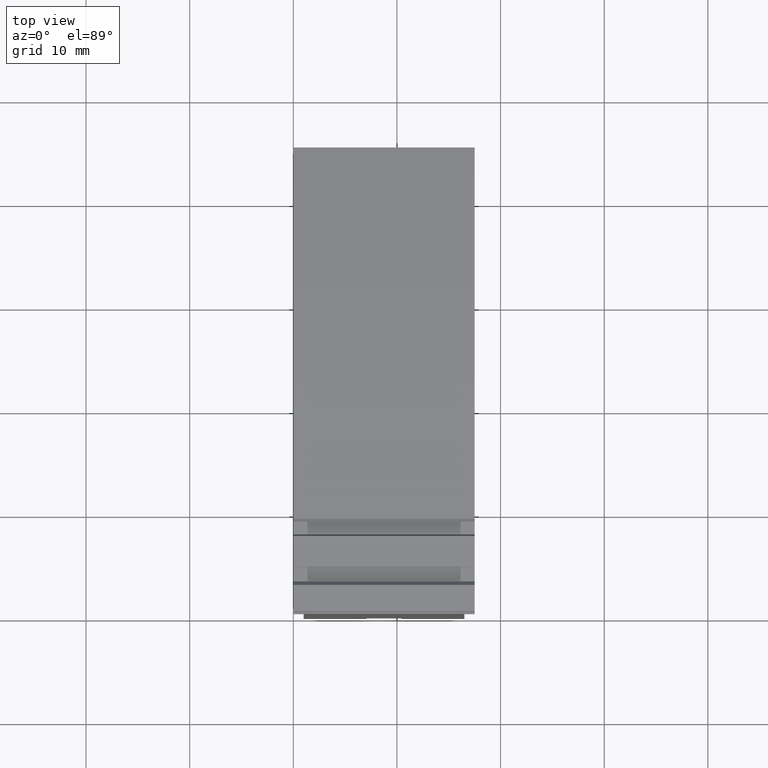
[diagram: clean part render]
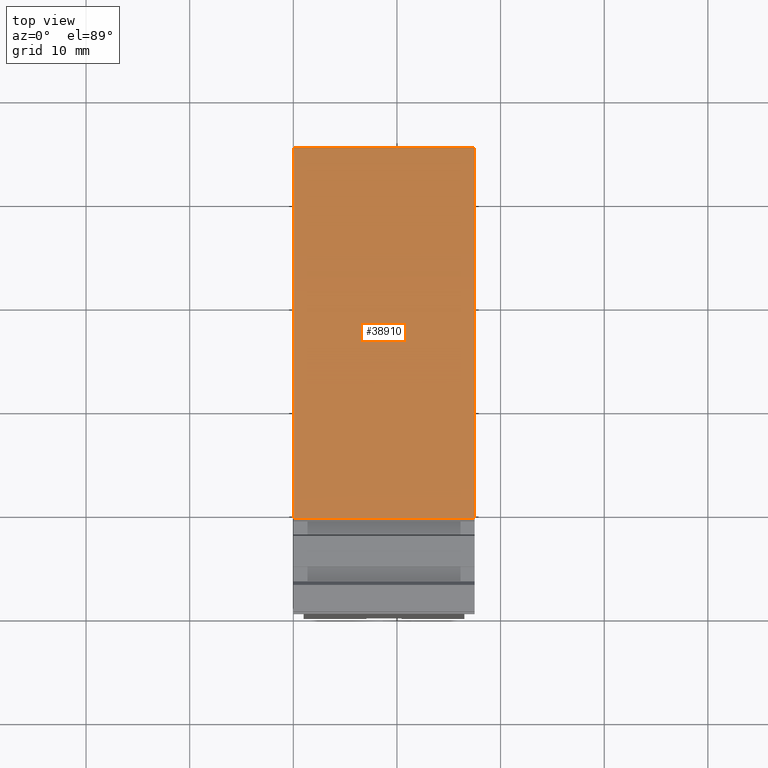
[diagram: same view with one face highlighted and labeled with its STEP entity id]
A machine part, top view. The second image highlights one B-rep face of the part: STEP entity #38910.
In plain terms, the highlighted cylindrical surface (partial cylindrical patch) has radius 200 mm, axis along (-1, 0, 0).
Its self-contained STEP definition (entity closure, byte-faithful):
#2870=CARTESIAN_POINT('',(46.9413513139151,68.7979153861102,
-48.0500000000926));
#2880=VERTEX_POINT('',#2870);
#2910=CARTESIAN_POINT('',(69.3413513139148,-129.94372594756,
-48.0500000000926));
#2920=DIRECTION('',(-1.22464679914735E-16,0.,1.));
#2930=DIRECTION('',(1.,0.,1.22464679914735E-16));
#2940=AXIS2_PLACEMENT_3D('',#2910,#2920,#2930);
#2950=CIRCLE('',#2940,200.000000000003);
#2960=CARTESIAN_POINT('',(82.7882045583549,69.6037173781405,
-48.0500000000926));
#2970=VERTEX_POINT('',#2960);
#2980=EDGE_CURVE('',#2970,#2880,#2950,.T.);
#4940=CARTESIAN_POINT('',(82.7882045583549,69.6037173781405,
-65.5500000000926));
#4950=VERTEX_POINT('',#4940);
#5050=CARTESIAN_POINT('',(82.7882045583549,69.6037173781405,
-65.5500000000926));
#5060=DIRECTION('',(-1.22464679914735E-16,0.,1.));
#5070=VECTOR('',#5060,1.);
#5080=LINE('',#5050,#5070);
#5090=EDGE_CURVE('',#4950,#2970,#5080,.T.);
#5300=CARTESIAN_POINT('',(46.9413513139151,68.7979153861102,
-65.5500000000926));
#5310=VERTEX_POINT('',#5300);
#5360=CARTESIAN_POINT('',(46.9413513139151,68.7979153861102,
-65.5500000000926));
#5370=DIRECTION('',(-1.22464679914735E-16,0.,1.));
#5380=VECTOR('',#5370,1.);
#5390=LINE('',#5360,#5380);
#5400=EDGE_CURVE('',#5310,#2880,#5390,.T.);
#36750=CARTESIAN_POINT('',(69.3413513139148,-129.94372594756,
-65.5500000000926));
#36760=DIRECTION('',(-1.22464679914735E-16,0.,1.));
#36770=DIRECTION('',(1.,0.,1.22464679914735E-16));
#36780=AXIS2_PLACEMENT_3D('',#36750,#36760,#36770);
#36790=CIRCLE('',#36780,200.000000000003);
#36800=EDGE_CURVE('',#4950,#5310,#36790,.T.);
#38800=CARTESIAN_POINT('',(69.3413513139148,-129.94372594756,
-65.5500000000926));
#38810=DIRECTION('',(-1.22464679914735E-16,0.,1.));
#38820=DIRECTION('',(1.,0.,1.22464679914735E-16));
#38830=AXIS2_PLACEMENT_3D('',#38800,#38810,#38820);
#38840=CYLINDRICAL_SURFACE('',#38830,200.000000000003);
#38850=ORIENTED_EDGE('',*,*,#36800,.T.);
#38860=ORIENTED_EDGE('',*,*,#5090,.F.);
#38870=ORIENTED_EDGE('',*,*,#2980,.F.);
#38880=ORIENTED_EDGE('',*,*,#5400,.T.);
#38890=EDGE_LOOP('',(#38880,#38870,#38860,#38850));
#38900=FACE_OUTER_BOUND('',#38890,.T.);
#38910=ADVANCED_FACE('',(#38900),#38840,.T.);